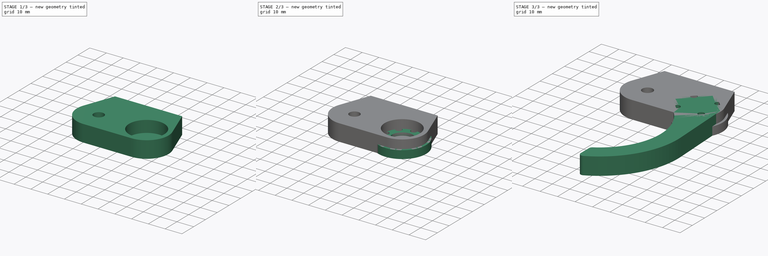
[diagram: build sequence overview — one tinted view per stage of 3, left to right]
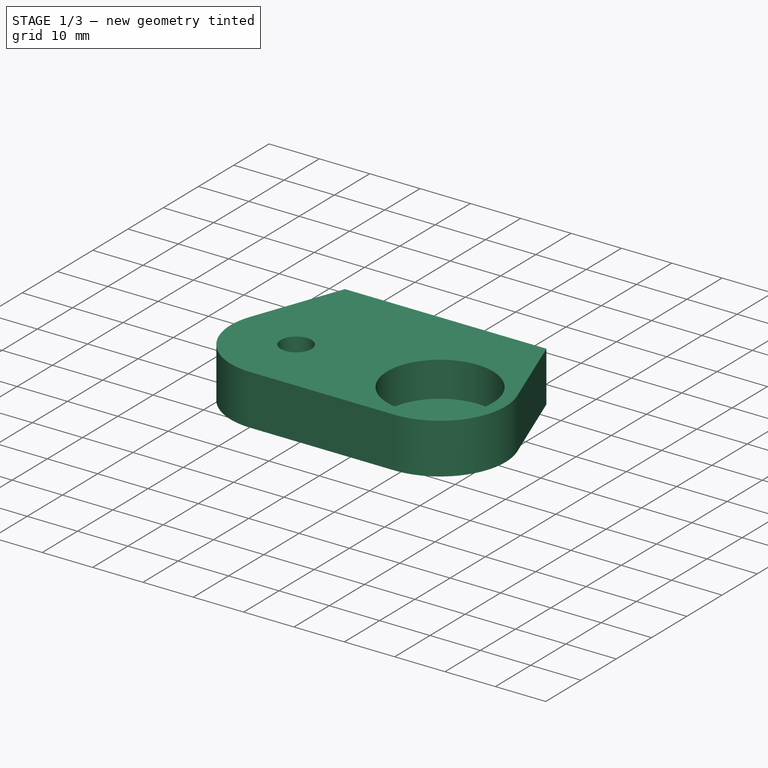
[diagram: stage 1 of 3 — iso view after this stage's code; geometry added in this stage tinted green]
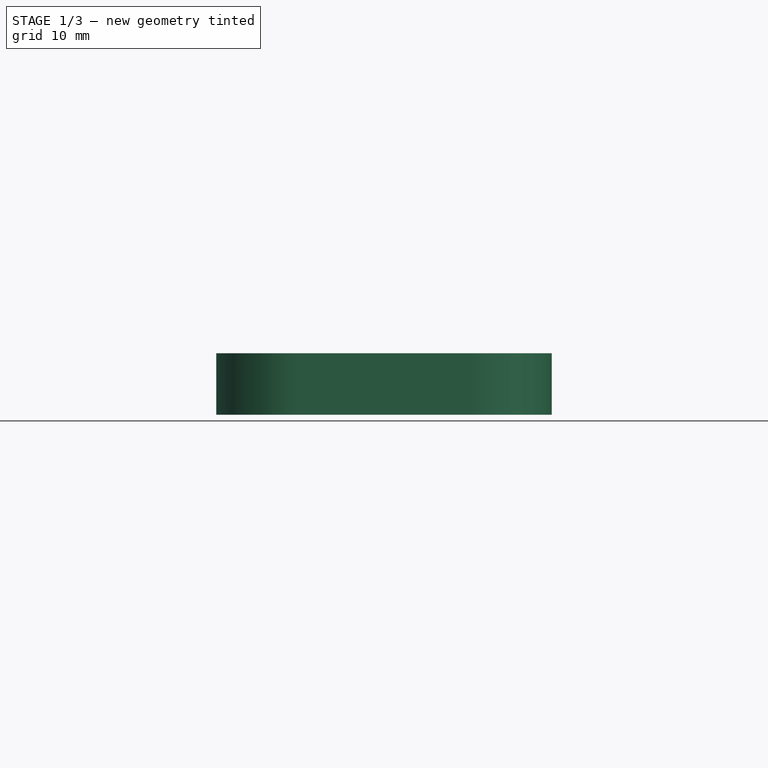
[diagram: stage 1 of 3 — front view after this stage's code; geometry added in this stage tinted green]
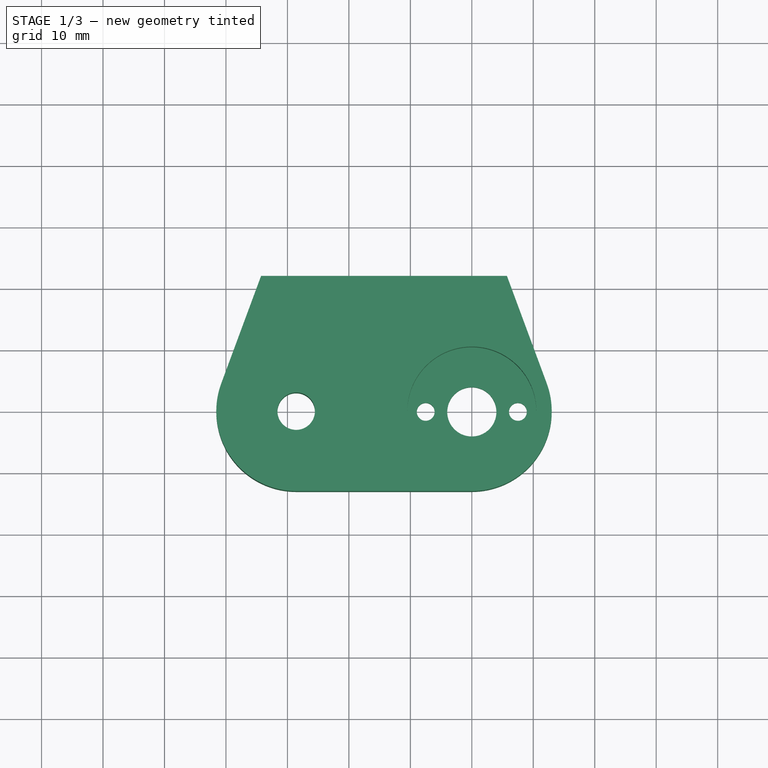
[diagram: stage 1 of 3 — top view after this stage's code; geometry added in this stage tinted green]
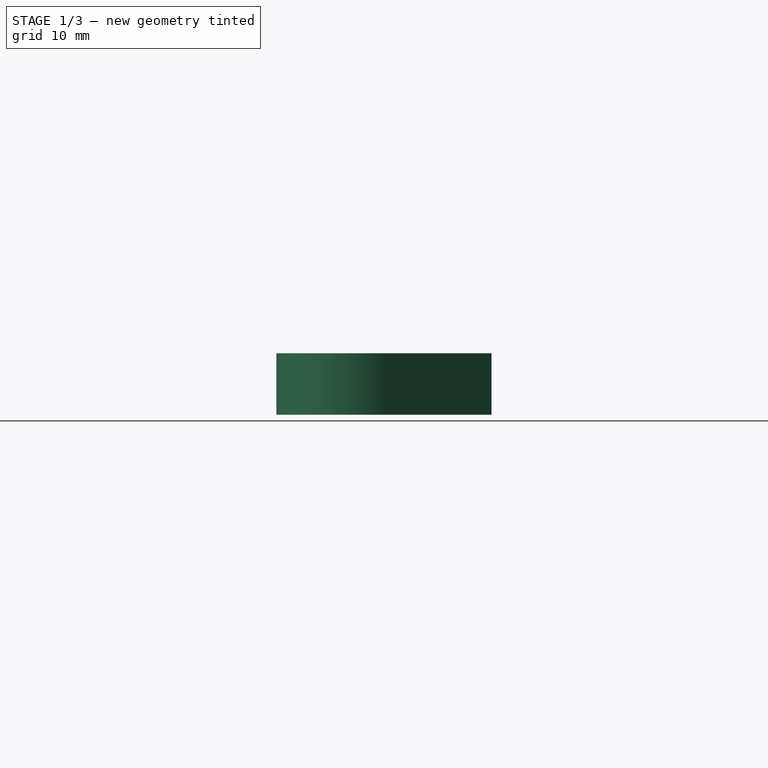
[diagram: stage 1 of 3 — right view after this stage's code; geometry added in this stage tinted green]
FCSTD DOCUMENT  (FreeCAD 0.19R24276 (Git))
Label: A4-GRIPPER
License: All rights reserved
LicenseURL: http://en.wikipedia.org/wiki/All_rights_reserved
objects: PartDesign::CoordinateSystem×12, App::Link×9, Sketcher::SketchObject×6, App::Part×5, PartDesign::Pad×4, PartDesign::Body×4, App::DocumentObjectGroup×2, PartDesign::Pocket×2, App::FeaturePython×1
note: 34 computed .brp shape members not serialized (recipe doc carries the construction recipe); baked Part::Feature solids carry a one-line shape summary decoded from their .brp
EXTERNAL_REF file=HUB-545608.FCStd obj=face2
EXTERNAL_REF file=HUB-545608.FCStd obj=_45608_assembly
EXTERNAL_REF file=HUB-545616.FCStd obj=face2
EXTERNAL_REF file=HUB-545616.FCStd obj=_45616_assembly
EXTERNAL_REF file=HUB-545608.FCStd obj=flat
EXTERNAL_REF file=MOTOR-638380.FCStd obj=LCS_0
EXTERNAL_REF file=MOTOR-638380.FCStd obj=MOTOR_638380
EXTERNAL_REF file=HUB-545616.FCStd obj=flatFace

FEATURE [PartDesign::Body] Body_2
  Group = -> [LCS_0003,Sketch001,Pad001]
  Origin = -> Origin004
  Tip = -> Pad001
FEATURE [App::Part] GRIPPER_DRIVEN_1_0  label="GRIPPER-DRIVEN-1.0"
  Group = -> [LCS_0002,Body_2]
  Origin = -> Origin003
FEATURE [App::Link] GRIPPER_DRIVEN  label="GRIPPER-DRIVEN"
  AssemblyType = Asm4EE
  AttachedBy = #LCS_0002
  AttachedTo = Parent Assembly#LCS_Origin
  LinkedObject = -> GRIPPER_DRIVEN_1_0
  expr: Placement = LCS_Origin.Placement * AttachmentOffset * LCS_0002.Placement ^ -1
FEATURE [App::Link] GEAR_RHA32_36_36001  label="GEAR-RHA32-36-037"
  AssemblyType = Asm4EE
  AttachedBy = #LCS_0
  AttachedTo = GRIPPER_DRIVEN#LCS_0002
  AttachmentOffset = pos=(0,0,10) rot=(0,0,1;0rad)
  LinkPlacement = pos=(0,0,10) rot=(0,0,1;0rad)
  LinkedObject = -> GEAR_RHA32_36_36
  Placement = pos=(0,0,10) rot=(0,0,1;0rad)
  expr: Placement = GRIPPER_DRIVEN.Placement * LCS_0002.Placement * AttachmentOffset * LCS_0.Placement ^ -1
FEATURE [App::Link] GEAR_RHA32_36_36002  label="GEAR-RHA32-36-038"
  AssemblyType = Asm4EE
  AttachedBy = #LCS_0
  AttachedTo = GEAR_RHA32_36_36001#LCS_0
  AttachmentOffset = pos=(-28.575,0,0) rot=(0,0,1;0rad)
  LinkPlacement = pos=(-28.575,0,10) rot=(0,0,1;0rad)
  LinkedObject = -> GEAR_RHA32_36_36
  Placement = pos=(-28.575,0,10) rot=(0,0,1;0rad)
  expr: Placement = GEAR_RHA32_36_36001.Placement * LCS_0.Placement * AttachmentOffset * LCS_0.Placement ^ -1
FEATURE [App::Link] GRIPPER_DRIVEN_1_0001  label="GRIPPER-DRIVEN-1.001"
  AssemblyType = Asm4EE
  AttachedBy = #LCS_0002
  AttachedTo = GEAR_RHA32_36_36002#LCS_0
  AttachmentOffset = pos=(0,0,0) rot=(0,1,0;3.14159rad)
  LinkPlacement = pos=(-28.575,0,10) rot=(0,1,0;3.14159rad)
  LinkedObject = -> GRIPPER_DRIVEN_1_0
  Placement = pos=(-28.575,0,10) rot=(0,1,0;3.14159rad)
  expr: Placement = GEAR_RHA32_36_36002.Placement * LCS_0.Placement * AttachmentOffset * LCS_0002.Placement ^ -1
FEATURE [App::Link] HUB_545608_1
  AssemblyType = Asm4EE
  AttachedBy = #face2
  AttachedTo = GEAR_RHA32_36_36001#face2
  AttachmentOffset = pos=(0,0,0) rot=(0,1,0;3.14159rad)
  LinkPlacement = pos=(14.3607,-49.1577,-4.11336) rot=(-0.57735,0.57735,0.57735;4.18879rad)
  LinkedObject = -> <external HUB-545608.FCStd>#_45608_assembly
  Placement = pos=(14.3607,-49.1577,-4.11336) rot=(-0.57735,0.57735,0.57735;4.18879rad)
  expr: Placement = GEAR_RHA32_36_36001.Placement * face2.Placement * AttachmentOffset * HUB_545608#face2.Placement ^ -1
FEATURE [PartDesign::CoordinateSystem] face2
  AttacherType = Attacher::AttachEngine3D
  MapMode = 11
  Placement = pos=(0,0,4.7752) rot=(0,0,1;1.5708rad)
  Support = -> [Pad]
FEATURE [App::Part] GEAR_RHA32_36_36  label="GEAR-RHA32-36-36"
  Group = -> [LCS_0,Body,face2]
  Origin = -> Origin001
FEATURE [App::Link] HUB_545616
  AssemblyType = Asm4EE
  AttachedBy = #face2
  AttachedTo = GEAR_RHA32_36_36002#face2
  AttachmentOffset = pos=(0,0,0) rot=(0,0,1;4.71239rad)
  LinkPlacement = pos=(-45.6648,21.6153,21.2962) rot=(-0.57735,-0.57735,-0.57735;4.18879rad)
  LinkedObject = -> <external HUB-545616.FCStd>#_45616_assembly
  Placement = pos=(-45.6648,21.6153,21.2962) rot=(-0.57735,-0.57735,-0.57735;4.18879rad)
  expr: Placement = GEAR_RHA32_36_36002.Placement * face2.Placement * AttachmentOffset * HUB_545616#face2.Placement ^ -1
FEATURE [App::Link] MOTOR_638380
  AssemblyType = Asm4EE
  AttachedBy = #LCS_0
  AttachedTo = HUB_545608_1#flat
  AttachmentOffset = pos=(0,0,9) rot=(1,0,0;3.14159rad)
  LinkPlacement = pos=(7e-16,-7e-16,30.7602) rot=(-0.707107,-0.707107,0;3.14159rad)
  LinkedObject = -> <external MOTOR-638380.FCStd>#MOTOR_638380
  Placement = pos=(7e-16,-7e-16,30.7602) rot=(-0.707107,-0.707107,0;3.14159rad)
  expr: Placement = HUB_545608_1.Placement * HUB_545608#flat.Placement * AttachmentOffset * MOTOR_638380#LCS_0.Placement ^ -1
FEATURE [PartDesign::CoordinateSystem] LCS_0004
  AttacherType = Attacher::AttachEngine3D
  MapMode = 2
  Support = -> [X_Axis005]
FEATURE [PartDesign::CoordinateSystem] LCS_0005
  AttacherType = Attacher::AttachEngine3D
  MapMode = 2
  Support = -> [X_Axis006]
FEATURE [Sketcher::SketchObject] Sketch002
  FullyConstrained = true
  MapMode = 5
  Support = -> [XY_Plane006]
  sketch-geometry (10):
    g0: Circle CenterX=0 CenterY=0 CenterZ=0 NormalX=0 NormalY=0 NormalZ=1 AngleXU=0 Radius=4
    g1: Circle CenterX=7.5 CenterY=0 CenterZ=0 NormalX=0 NormalY=0 NormalZ=1 AngleXU=0 Radius=1.45
    g2: Circle CenterX=-7.5 CenterY=0 CenterZ=0 NormalX=0 NormalY=0 NormalZ=1 AngleXU=0 Radius=1.45
    g3: Circle CenterX=-28.575 CenterY=0 CenterZ=0 NormalX=0 NormalY=0 NormalZ=1 AngleXU=0 Radius=3.05
    g4: LineSegment StartX=-34.2875 StartY=22 StartZ=0 EndX=5.7125 EndY=22 EndZ=0
    g5: LineSegment StartX=5.7125 StartY=22 StartZ=0 EndX=12.1902 EndY=4.51652 EndZ=0
    g6: LineSegment StartX=-2.4e-15 StartY=-13 StartZ=0 EndX=-28.575 EndY=-13 EndZ=0
    g7: LineSegment StartX=-40.7652 StartY=4.51652 StartZ=0 EndX=-34.2875 EndY=22 EndZ=0
    g8: ArcOfCircle CenterX=0 CenterY=0 CenterZ=0 NormalX=0 NormalY=0 NormalZ=1 AngleXU=0 Radius=13 StartAngle=4.71239 EndAngle=6.63801
    g9: ArcOfCircle CenterX=-28.575 CenterY=0 CenterZ=0 NormalX=0 NormalY=0 NormalZ=1 AngleXU=0 Radius=13 StartAngle=2.78677 EndAngle=4.71239
  constraints (24):
    c: Coincident(g0,g-1)
    c: PointOnObject(g1,g-1)
    c: Diameter(g0) = 8
    c: DistanceX(g2,g1) = 15
    c: Diameter(g2) = 2.9
    c: Equal(g2,g1)
    c: Symmetric(g2,g1,g-2)
    c: PointOnObject(g3,g-1)
    c: Diameter(g3) = 6.1
    c: DistanceX(g3,g-1) = 28.575
    c: Coincident(g4,g5)
    c: Coincident(g7,g4)
    c: Horizontal(g4)
    c: Horizontal(g6)
    c: DistanceY(g-1,g4) = 22
    c: Tangent(g6,g8) = 1.5708
    c: Tangent(g5,g8) = 1.5708
    c: Tangent(g7,g9) = 1.5708
    c: Tangent(g6,g9) = 1.5708
    c: DistanceX(g4,g4) = 40
    c: Coincident(g8,g0)
    c: Coincident(g9,g3)
    c: Diameter(g8) = 26
    c: Horizontal(g7,g5)
FEATURE [PartDesign::Pad] Pad002
  Direction = (1,1,1)
  Length = 10
  Length2 = 100
  Profile = -> Sketch002
  Refine = true
  Type = 0
FEATURE [Sketcher::SketchObject] Sketch003
  AttachmentOffset = pos=(0,0,3) rot=(0,0,1;0rad)
  FullyConstrained = true
  MapMode = 5
  Placement = pos=(0,0,3) rot=(0,0,1;0rad)
  Support = -> [XY_Plane006]
  sketch-geometry (1):
    g0: Circle CenterX=0 CenterY=0 CenterZ=0 NormalX=0 NormalY=0 NormalZ=1 AngleXU=0 Radius=10.5
  constraints (2):
    c: Coincident(g0,g-1)
    c: Diameter(g0) = 21
FEATURE [PartDesign::Pocket] Pocket
  BaseFeature = -> Pad002
  Length = 7
  Length2 = 100
  Profile = -> Sketch003
  Refine = true
  Reversed = true
  Type = 0
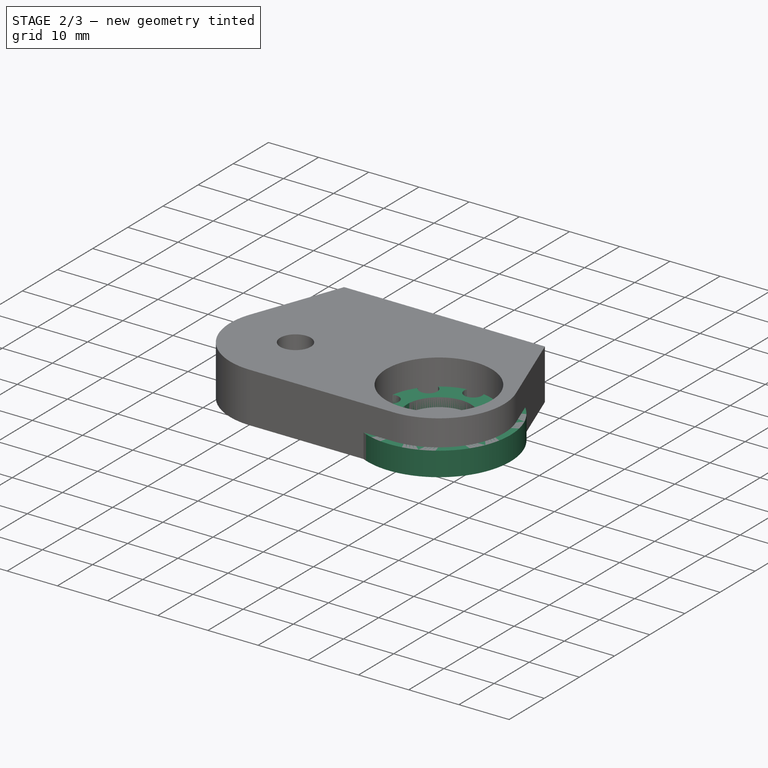
[diagram: stage 2 of 3 — iso view after this stage's code; geometry added in this stage tinted green]
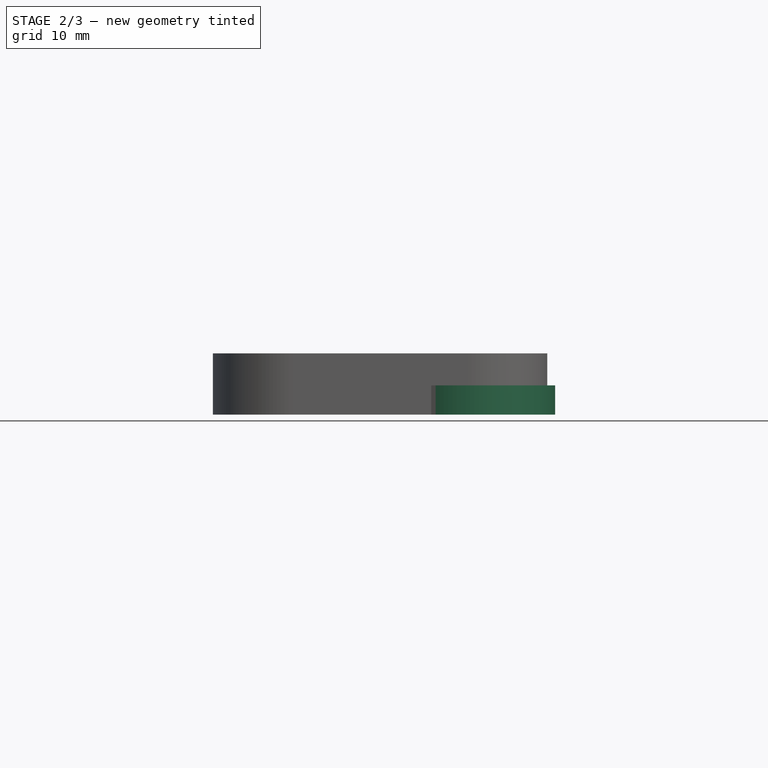
[diagram: stage 2 of 3 — front view after this stage's code; geometry added in this stage tinted green]
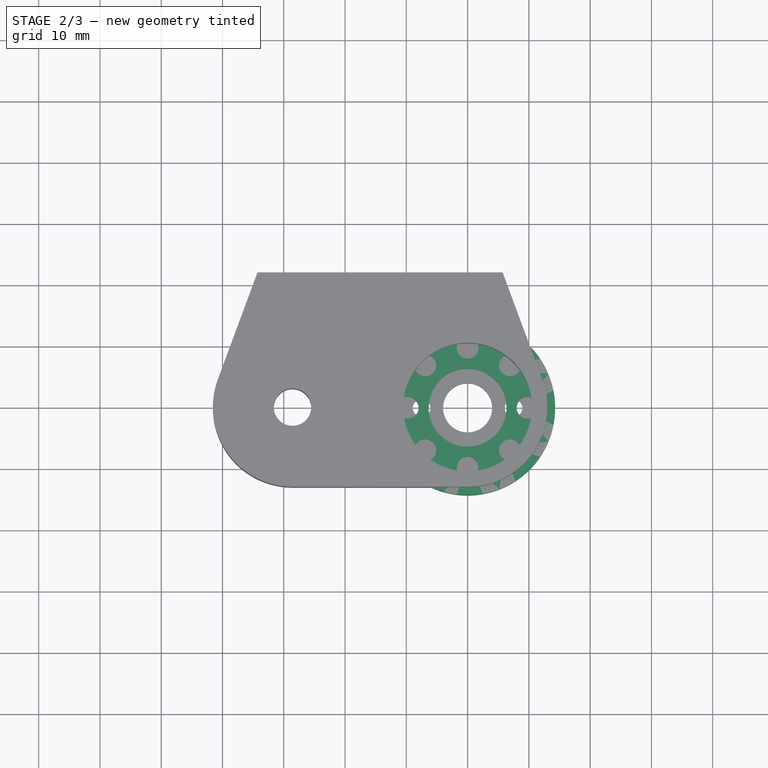
[diagram: stage 2 of 3 — top view after this stage's code; geometry added in this stage tinted green]
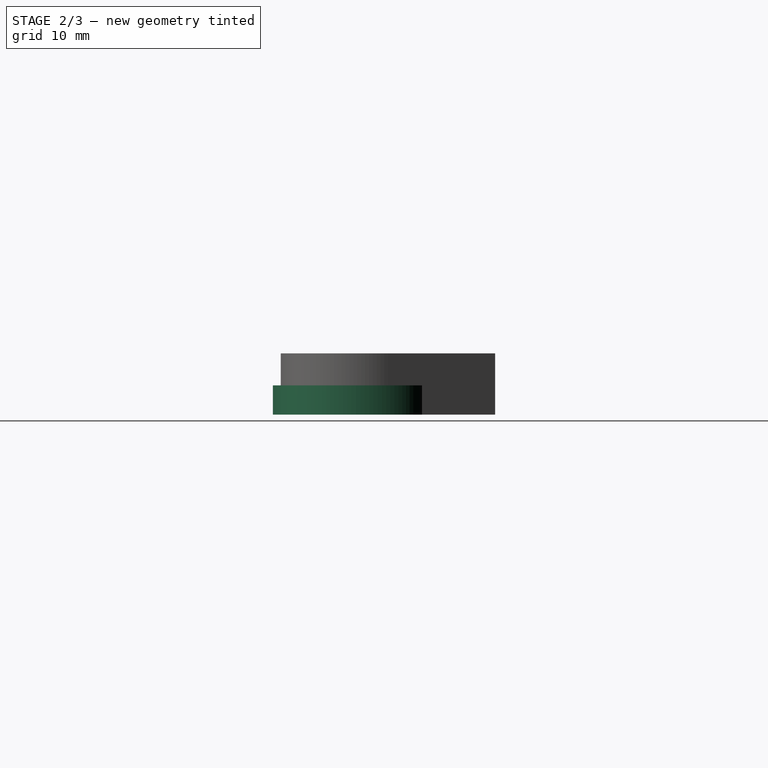
[diagram: stage 2 of 3 — right view after this stage's code; geometry added in this stage tinted green]
FEATURE [PartDesign::CoordinateSystem] LCS_Origin
  AttacherType = Attacher::AttachEngine3D
  MapMode = 2
  Support = -> [X_Axis]
FEATURE [App::DocumentObjectGroup] Constraints
FEATURE [App::FeaturePython] Variables  # WARN: FeaturePython — macro-defined, semantics opaque (R4)
FEATURE [PartDesign::CoordinateSystem] LCS_0
  AttacherType = Attacher::AttachEngine3D
  MapMode = 2
  Support = -> [X_Axis001]
FEATURE [PartDesign::CoordinateSystem] LCS_0001
  AttacherType = Attacher::AttachEngine3D
  MapMode = 2
  Support = -> [X_Axis002]
FEATURE [Sketcher::SketchObject] Sketch
  FullyConstrained = true
  MapMode = 5
  Support = -> [XY_Plane002]
  sketch-geometry (15):
    g0: Circle CenterX=0 CenterY=0 CenterZ=0 NormalX=0 NormalY=0 NormalZ=1 AngleXU=0 Radius=14.2875
    g1: Circle CenterX=0 CenterY=0 CenterZ=0 NormalX=0 NormalY=0 NormalZ=1 AngleXU=0 Radius=6.35
    g2: Circle CenterX=0 CenterY=0 CenterZ=0 NormalX=0 NormalY=0 NormalZ=1 AngleXU=0 Radius=9.779
    g3: Circle CenterX=-6.9148 CenterY=6.9148 CenterZ=0 NormalX=0 NormalY=0 NormalZ=1 AngleXU=0 Radius=1.778
    g4: Circle CenterX=0 CenterY=9.779 CenterZ=0 NormalX=0 NormalY=0 NormalZ=1 AngleXU=0 Radius=1.778
    g5: Circle CenterX=6.9148 CenterY=6.9148 CenterZ=0 NormalX=0 NormalY=0 NormalZ=1 AngleXU=0 Radius=1.778
    g6: Circle CenterX=9.779 CenterY=0 CenterZ=0 NormalX=0 NormalY=0 NormalZ=1 AngleXU=0 Radius=1.778
    g7: Circle CenterX=6.9148 CenterY=-6.9148 CenterZ=0 NormalX=0 NormalY=0 NormalZ=1 AngleXU=0 Radius=1.778
    g8: Circle CenterX=0 CenterY=-9.779 CenterZ=0 NormalX=0 NormalY=0 NormalZ=1 AngleXU=0 Radius=1.778
    g9: Circle CenterX=-6.9148 CenterY=-6.9148 CenterZ=0 NormalX=0 NormalY=0 NormalZ=1 AngleXU=0 Radius=1.778
    g10: Circle CenterX=-9.779 CenterY=0 CenterZ=0 NormalX=0 NormalY=0 NormalZ=1 AngleXU=0 Radius=1.778
    g11: LineSegment StartX=-6.9148 StartY=6.9148 StartZ=0 EndX=6.9148 EndY=6.9148 EndZ=0
    g12: LineSegment StartX=6.9148 StartY=6.9148 StartZ=0 EndX=6.9148 EndY=-6.9148 EndZ=0
    g13: LineSegment StartX=6.9148 StartY=-6.9148 StartZ=0 EndX=-6.9148 EndY=-6.9148 EndZ=0
    g14: LineSegment StartX=-6.9148 StartY=-6.9148 StartZ=0 EndX=-6.9148 EndY=6.9148 EndZ=0
  constraints (38):
    c: Coincident(g0,g-1)
    c: Diameter(g0) = 28.575
    c: Coincident(g1,g0)
    c: Diameter(g1) = 12.7
    c: Coincident(g2,g0)
    c: Diameter(g2) = 19.558
    c: PointOnObject(g3,g2)
    c: PointOnObject(g4,g2)
    c: PointOnObject(g5,g2)
    c: PointOnObject(g6,g2)
    c: PointOnObject(g7,g2)
    c: PointOnObject(g8,g2)
    c: PointOnObject(g9,g2)
    c: PointOnObject(g10,g2)
    c: PointOnObject(g10,g-1)
    c: Coincident(g11,g12)
    c: Coincident(g12,g13)
    c: Coincident(g13,g14)
    c: Coincident(g14,g11)
    c: Horizontal(g11)
    c: Horizontal(g13)
    c: Vertical(g12)
    c: Coincident(g11,g3)
    c: Coincident(g12,g7)
    c: Equal(g11,g14)
    c: Coincident(g13,g9)
    c: Coincident(g5,g11)
    c: PointOnObject(g4,g-2)
    c: PointOnObject(g6,g-1)
    c: PointOnObject(g8,g-2)
    c: Diameter(g4) = 3.556
    c: Equal(g4,g3)
    c: Equal(g4,g10)
    c: Equal(g4,g9)
    c: Equal(g4,g8)
    c: Equal(g4,g7)
    c: Equal(g4,g6)
    c: Equal(g4,g5)
FEATURE [PartDesign::Pad] Pad
  Direction = (1,1,1)
  Length = 4.7752
  Length2 = 100
  Profile = -> Sketch
  Refine = true
  Type = 0
FEATURE [Sketcher::SketchObject] Sketch004
  AttachmentOffset = pos=(0,0,-22) rot=(0,0,1;0rad)
  FullyConstrained = true
  MapMode = 5
  Placement = pos=(0,22,-4.9e-15) rot=(1,0,0;1.5708rad)
  Support = -> [XZ_Plane006]
  sketch-geometry (2):
    g0: Circle CenterX=-29.2875 CenterY=5 CenterZ=0 NormalX=0 NormalY=0 NormalZ=1 AngleXU=0 Radius=1.7
    g1: Circle CenterX=0.7125 CenterY=5 CenterZ=0 NormalX=0 NormalY=0 NormalZ=1 AngleXU=0 Radius=1.7
  constraints (6):
    c: Diameter(g1) = 3.4
    c: Equal(g1,g0)
    c: DistanceY(g-1,g0) = 5
    c: DistanceX(g0,g1) = 30
    c: Horizontal(g0,g1)
    c: DistanceX(g0,g-1) = 29.2875
FEATURE [PartDesign::Pocket] Pocket001
  BaseFeature = -> Pocket
  Length = 5
  Length2 = 100
  Profile = -> Sketch004
  Refine = true
  Reversed = true
  Type = 0
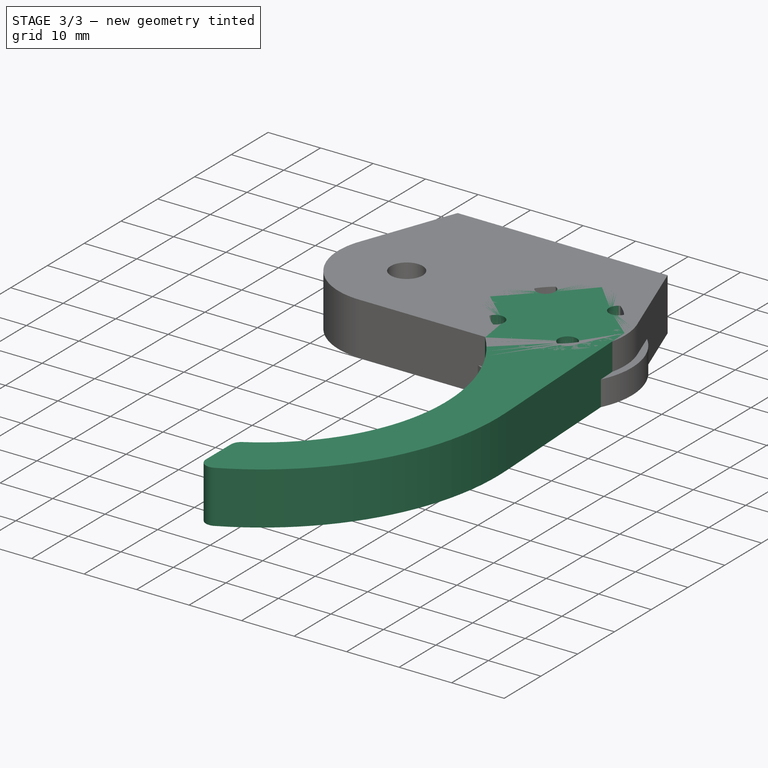
[diagram: stage 3 of 3 — iso view after this stage's code; geometry added in this stage tinted green]
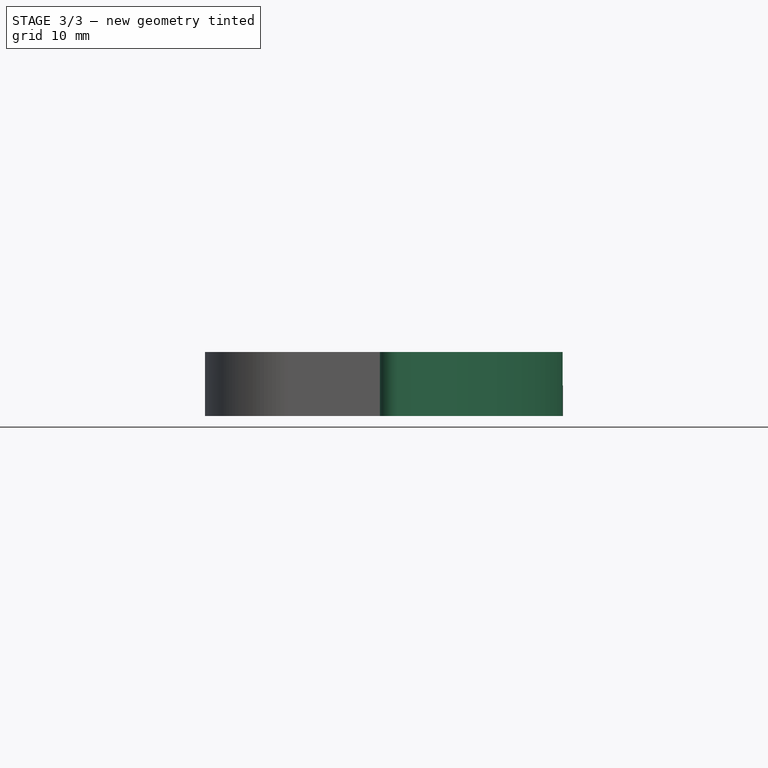
[diagram: stage 3 of 3 — front view after this stage's code; geometry added in this stage tinted green]
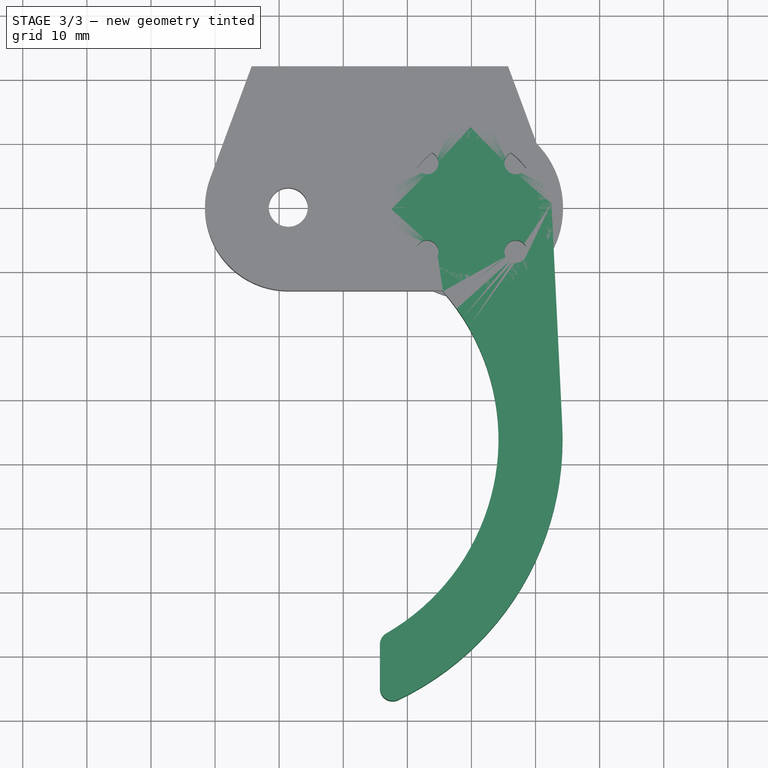
[diagram: stage 3 of 3 — top view after this stage's code; geometry added in this stage tinted green]
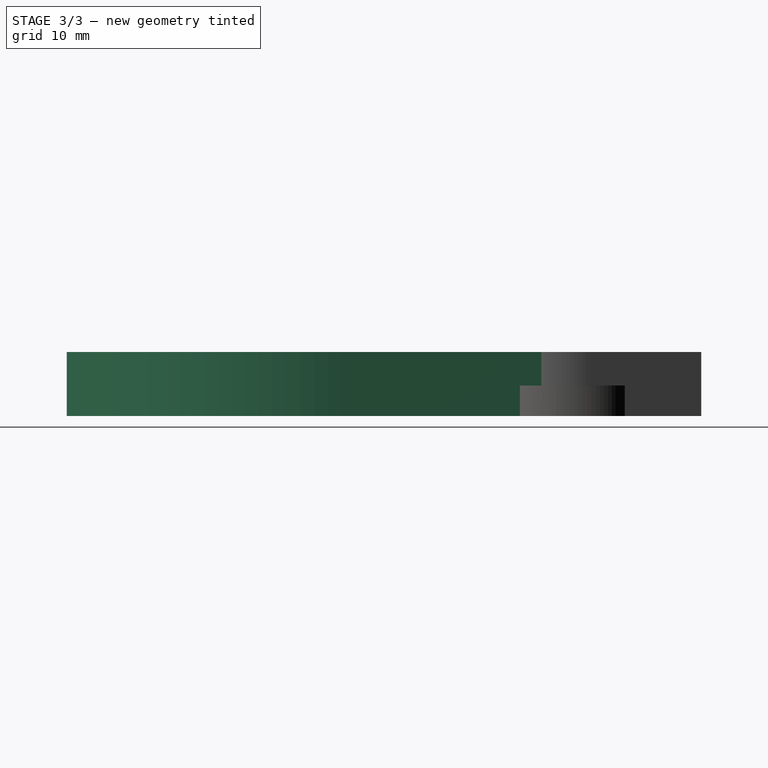
[diagram: stage 3 of 3 — right view after this stage's code; geometry added in this stage tinted green]
FEATURE [PartDesign::Body] Body
  Group = -> [LCS_0001,Sketch,Pad]
  Origin = -> Origin002
  Tip = -> Pad
FEATURE [PartDesign::CoordinateSystem] LCS_0002
  AttacherType = Attacher::AttachEngine3D
  MapMode = 2
  Support = -> [X_Axis003]
FEATURE [PartDesign::CoordinateSystem] LCS_0003
  AttacherType = Attacher::AttachEngine3D
  MapMode = 2
  Support = -> [X_Axis004]
FEATURE [Sketcher::SketchObject] Sketch001
  FullyConstrained = true
  MapMode = 5
  Support = -> [XY_Plane004]
  sketch-geometry (18):
    g0: Circle CenterX=0 CenterY=0 CenterZ=0 NormalX=0 NormalY=0 NormalZ=1 AngleXU=0 Radius=9.779
    g1: LineSegment StartX=-6.9148 StartY=6.9148 StartZ=0 EndX=6.9148 EndY=6.9148 EndZ=0
    g2: LineSegment StartX=6.9148 StartY=6.9148 StartZ=0 EndX=6.9148 EndY=-6.9148 EndZ=0
    g3: LineSegment StartX=6.9148 StartY=-6.9148 StartZ=0 EndX=-6.9148 EndY=-6.9148 EndZ=0
    g4: LineSegment StartX=-6.9148 StartY=-6.9148 StartZ=0 EndX=-6.9148 EndY=6.9148 EndZ=0
    g5: Circle CenterX=-6.9148 CenterY=6.9148 CenterZ=0 NormalX=0 NormalY=0 NormalZ=1 AngleXU=0 Radius=1.778
    g6: Circle CenterX=6.9148 CenterY=6.9148 CenterZ=0 NormalX=0 NormalY=0 NormalZ=1 AngleXU=0 Radius=1.778
    g7: Circle CenterX=6.9148 CenterY=-6.9148 CenterZ=0 NormalX=0 NormalY=0 NormalZ=1 AngleXU=0 Radius=1.778
    g8: Circle CenterX=-6.9148 CenterY=-6.9148 CenterZ=0 NormalX=0 NormalY=0 NormalZ=1 AngleXU=0 Radius=1.778
    g9: ArcOfCircle CenterX=0 CenterY=0 CenterZ=0 NormalX=0 NormalY=0 NormalZ=1 AngleXU=0 Radius=12.5 StartAngle=0.048599 EndAngle=4.00747
    g10: ArcOfCircle CenterX=-30.7788 CenterY=-36.179 CenterZ=0 NormalX=0 NormalY=0 NormalZ=1 AngleXU=0 Radius=35 StartAngle=5.23572 EndAngle=7.14906
    g11: ArcOfCircle CenterX=-30.7788 CenterY=-36.179 CenterZ=0 NormalX=0 NormalY=0 NormalZ=1 AngleXU=0 Radius=45 StartAngle=5.15691 EndAngle=6.33178
    g12: LineSegment StartX=12.4852 StartY=0.607249 StartZ=0 EndX=14.1681 EndY=-33.9929 EndZ=0
    g13: Circle CenterX=0 CenterY=0 CenterZ=0 NormalX=0 NormalY=0 NormalZ=1 AngleXU=0 Radius=14.2875
    g14: ArcOfCircle CenterX=-12.2875 CenterY=-68.2269 CenterZ=0 NormalX=0 NormalY=0 NormalZ=1 AngleXU=0 Radius=2 StartAngle=2.09412 EndAngle=3.14159
    g15: ArcOfCircle CenterX=-12.2875 CenterY=-75 CenterZ=0 NormalX=0 NormalY=0 NormalZ=1 AngleXU=0 Radius=2 StartAngle=3.14159 EndAngle=5.15691
    g16: LineSegment StartX=-14.2875 StartY=-75 StartZ=0 EndX=-14.2875 EndY=-68.2269 EndZ=0
    g17: LineSegment StartX=-14.2875 StartY=0 StartZ=0 EndX=-14.2875 EndY=-68.2269 EndZ=0
  constraints (44):
    c: Coincident(g0,g-1)
    c: Diameter(g0) = 19.558
    c: Coincident(g1,g2)
    c: Coincident(g2,g3)
    c: Coincident(g3,g4)
    c: Coincident(g4,g1)
    c: Horizontal(g1)
    c: Horizontal(g3)
    c: Vertical(g2)
    c: Vertical(g4)
    c: PointOnObject(g1,g0)
    c: PointOnObject(g2,g0)
    c: Equal(g1,g4)
    c: PointOnObject(g1,g0)
    c: Coincident(g5,g1)
    c: Coincident(g6,g1)
    c: Coincident(g7,g2)
    c: Coincident(g8,g3)
    c: Diameter(g7) = 3.556
    c: Equal(g7,g8)
    c: Equal(g7,g5)
    c: Equal(g7,g6)
    c: Coincident(g9,g-1)
    c: Diameter(g9) = 25
    c: Coincident(g11,g10)
    c: Tangent(g12,g11) = 1.5708
    c: Diameter(g10) = 70
    c: Diameter(g11) = 90
    c: Coincident(g13,g9)
    c: Diameter(g13) = 28.575
    c: Tangent(g9,g12) = 1.5708
    c: Tangent(g9,g10) = 1.5708
    c: Tangent(g10,g14) = 1.5708
    c: Tangent(g11,g15) = -1.5708
    c: Vertical(g16)
    c: PointOnObject(g17,g13)
    c: Coincident(g17,g14)
    c: Vertical(g17)
    c: PointOnObject(g17,g-1)
    c: Diameter(g14) = 4
    c: Equal(g14,g15)
    c: Tangent(g16,g15) = 1.5708
    c: Tangent(g16,g14) = 1.5708
    c: DistanceY(g15,g-1) = 75
FEATURE [PartDesign::Pad] Pad001
  Direction = (1,1,1)
  Length = 10
  Length2 = 100
  Profile = -> Sketch001
  Refine = true
  Type = 0
FEATURE [PartDesign::Body] Body_3
  Group = -> [LCS_0005,Sketch002,Pad002,Sketch003,Pocket,Sketch004,Pocket001]
  Origin = -> Origin006
  Tip = -> Pocket001
FEATURE [App::Link] BASE
  AssemblyType = Asm4EE
  AttachedBy = #LCS_0004
  AttachedTo = MOTOR_638380#LCS_0
  AttachmentOffset = pos=(0,0,3) rot=(-0.707107,-0.707107,0;3.14159rad)
  LinkPlacement = pos=(8e-16,-5e-16,27.7602) rot=(0,0,1;0rad)
  LinkedObject = -> BASE_1_0
  Placement = pos=(8e-16,-5e-16,27.7602) rot=(0,0,1;0rad)
  expr: Placement = MOTOR_638380.Placement * MOTOR_638380#LCS_0.Placement * AttachmentOffset * LCS_0004.Placement ^ -1
FEATURE [PartDesign::CoordinateSystem] LCS_0006
  AttacherType = Attacher::AttachEngine3D
  MapMode = 2
  Support = -> [X_Axis007]
FEATURE [PartDesign::CoordinateSystem] LCS_0007
  AttacherType = Attacher::AttachEngine3D
  MapMode = 2
  Support = -> [X_Axis008]
FEATURE [Sketcher::SketchObject] Sketch005
  FullyConstrained = true
  MapMode = 5
  Support = -> [XY_Plane008]
  sketch-geometry (2):
    g0: Circle CenterX=0 CenterY=0 CenterZ=0 NormalX=0 NormalY=0 NormalZ=1 AngleXU=0 Radius=3.25
    g1: Circle CenterX=0 CenterY=0 CenterZ=0 NormalX=0 NormalY=0 NormalZ=1 AngleXU=0 Radius=7.5
  constraints (4):
    c: Coincident(g0,g-1)
    c: Coincident(g1,g0)
    c: Diameter(g0) = 6.5
    c: Diameter(g1) = 15
FEATURE [PartDesign::Pad] Pad003
  Direction = (1,1,1)
  Length = 6
  Length2 = 100
  Profile = -> Sketch005
  Refine = true
  Type = 0
FEATURE [PartDesign::Body] Body_4
  Group = -> [LCS_0007,Sketch005,Pad003]
  Origin = -> Origin008
  Tip = -> Pad003
FEATURE [App::Part] SPACER_1_0
  Group = -> [LCS_0006,Body_4]
  Origin = -> Origin007
FEATURE [App::Link] SPACER
  AssemblyType = Asm4EE
  AttachedBy = #LCS_0006
  AttachedTo = HUB_545616#flatFace
  LinkPlacement = pos=(-28.575,0,21.7602) rot=(0,0,1;0rad)
  LinkedObject = -> SPACER_1_0
  Placement = pos=(-28.575,0,21.7602) rot=(0,0,1;0rad)
  expr: Placement = HUB_545616.Placement * HUB_545616#flatFace.Placement * AttachmentOffset * LCS_0006.Placement ^ -1
FEATURE [PartDesign::CoordinateSystem] A4
  AttacherType = Attacher::AttachEngine3D
  MapMode = 11
  Placement = pos=(0.7125,22,5) rot=(0.57735,-0.57735,0.57735;2.0944rad)
  Support = -> [Pocket001]
FEATURE [App::Part] BASE_1_0
  Group = -> [LCS_0004,Body_3,A4]
  Origin = -> Origin005
FEATURE [App::DocumentObjectGroup] Parts
  Group = -> [GEAR_RHA32_36_36,GRIPPER_DRIVEN_1_0,BASE_1_0,SPACER_1_0]
FEATURE [PartDesign::CoordinateSystem] A4001
  AttacherType = Attacher::AttachEngine3D
  Placement = pos=(0.7125,22,32.7602) rot=(-0.57735,0.57735,-0.57735;4.18879rad)
  expr: Placement = BASE.Placement * A4.Placement * AttachmentOffset
FEATURE [App::Part] Model
  Configuration = 0
  Group = -> [LCS_Origin,Constraints,Variables,GRIPPER_DRIVEN,GEAR_RHA32_36_36001,GEAR_RHA32_36_36002,GRIPPER_DRIVEN_1_0001,HUB_545608_1,HUB_545616,MOTOR_638380,BASE,SPACER,A4001]
  Origin = -> Origin
  Type = Assembly4 Model
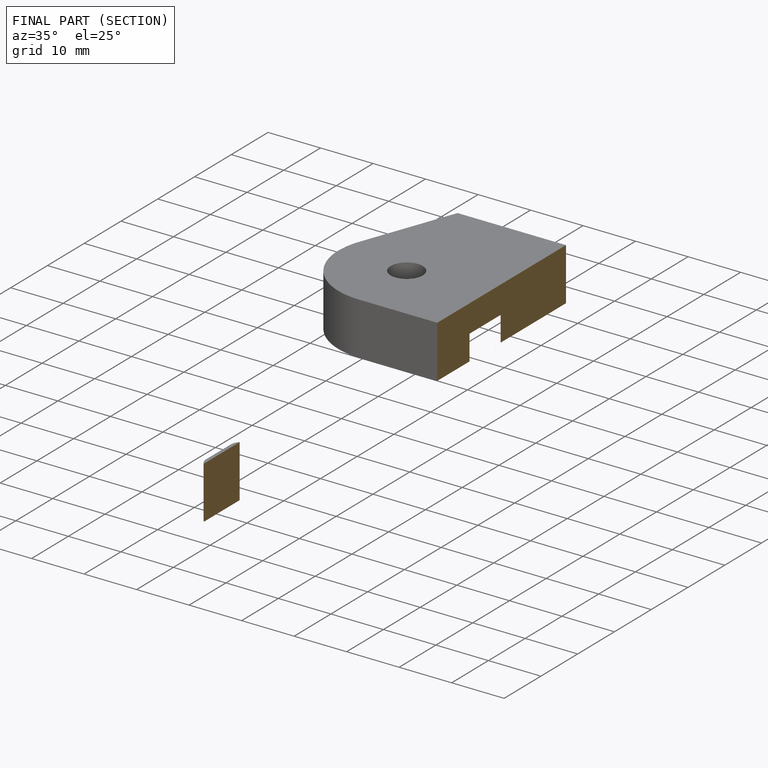
[diagram: finished part — half-section view (interior)]
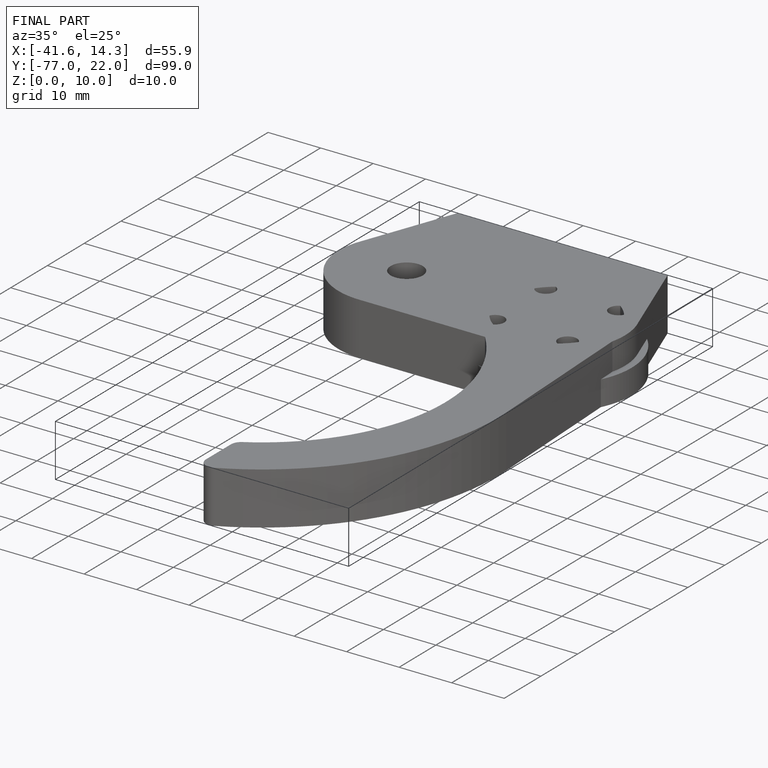
[diagram: finished part — iso view with bounding-box wireframe]
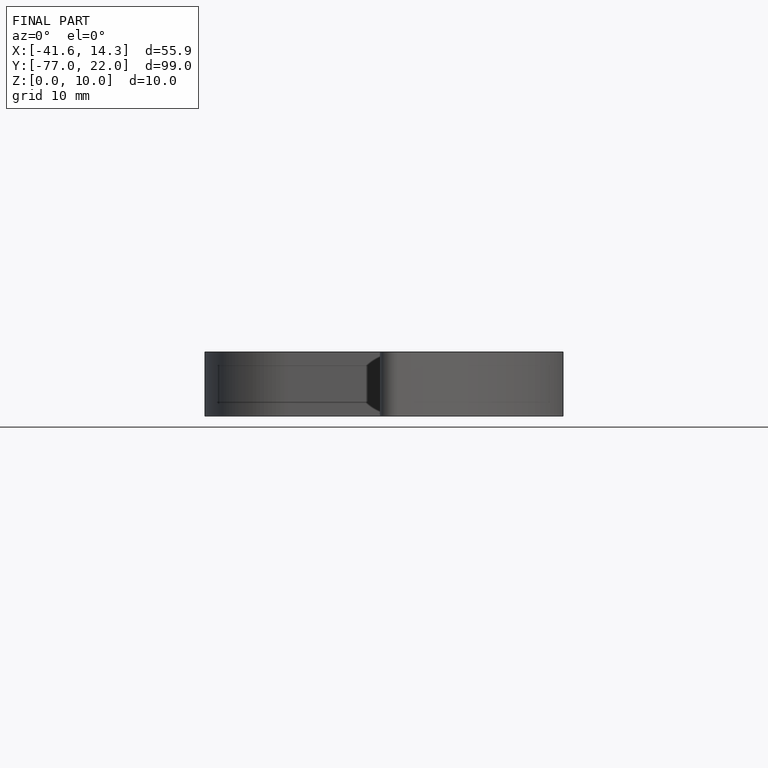
[diagram: finished part — front view with bounding-box wireframe]
